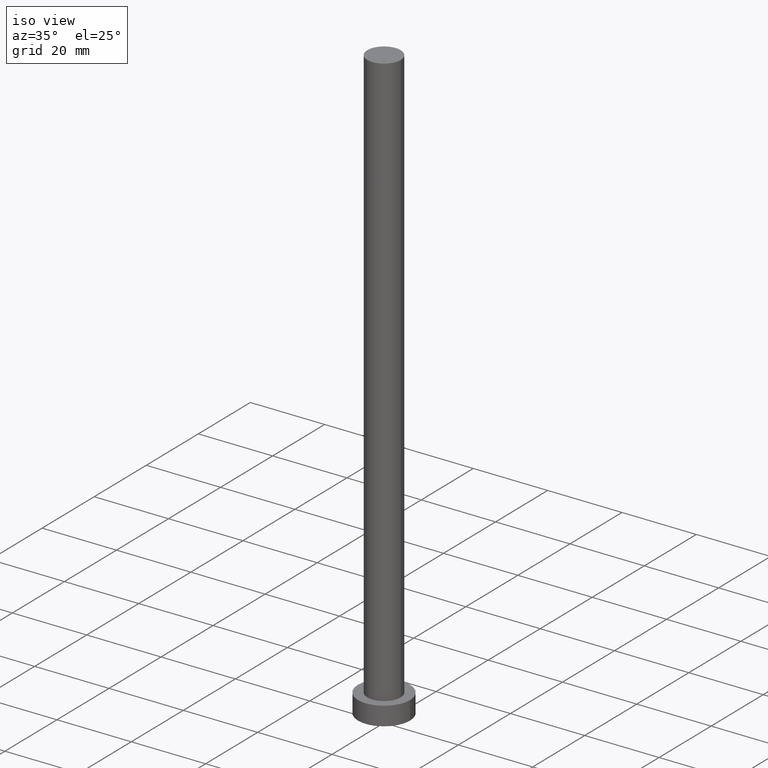
[diagram: clean part render]
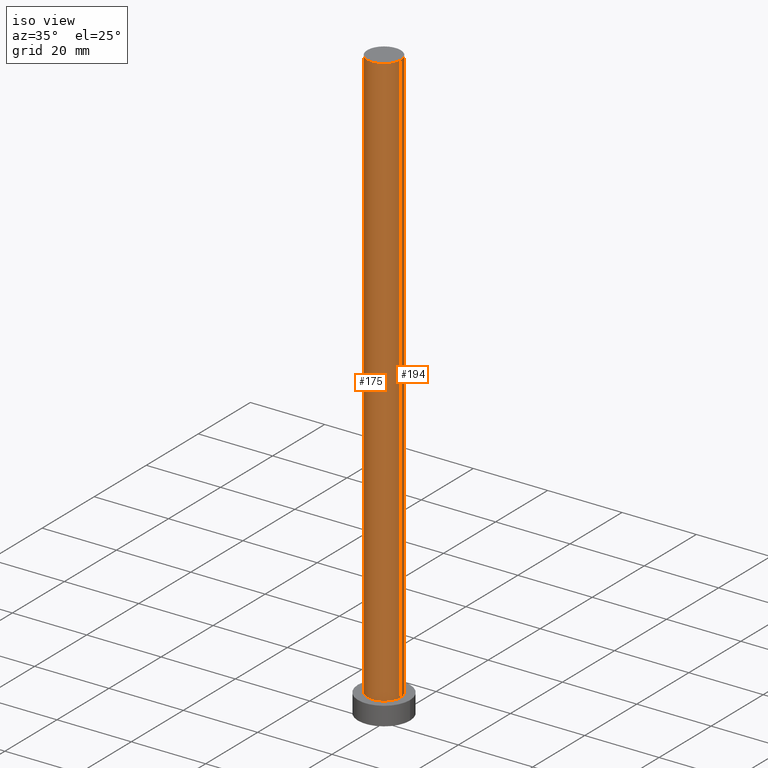
[diagram: same view with one multi-face feature highlighted, each face labeled with its STEP entity id]
A machine part, iso view. The highlighted faces form ONE feature: a constant-radius fillet chain: 2 tangent blend faces with common blend radius 4.5 mm. The faces share edges in the B-rep.
Their STEP definitions:
[1] entity #175 (Cylinder):
#2 = VERTEX_POINT ( 'NONE', #113 ) ;
#5 = ORIENTED_EDGE ( 'NONE', *, *, #195, .T. ) ;
#9 = FACE_OUTER_BOUND ( 'NONE', #236, .T. ) ;
#11 = CYLINDRICAL_SURFACE ( 'NONE', #232, 4.500000000000000888 ) ;
#26 = VERTEX_POINT ( 'NONE', #159 ) ;
#27 = CARTESIAN_POINT ( 'NONE',  ( 0.000000000000000000, 0.000000000000000000, 160.0000000000000000 ) ) ;
#32 = CARTESIAN_POINT ( 'NONE',  ( -4.500000000000000888, 0.000000000000000000, 160.0000000000000000 ) ) ;
#33 = CARTESIAN_POINT ( 'NONE',  ( 0.000000000000000000, 0.000000000000000000, 160.0000000000000000 ) ) ;
#43 = DIRECTION ( 'NONE',  ( -0.000000000000000000, -0.000000000000000000, -1.000000000000000000 ) ) ;
#45 = AXIS2_PLACEMENT_3D ( 'NONE', #33, #141, #127 ) ;
#56 = ORIENTED_EDGE ( 'NONE', *, *, #223, .T. ) ;
#61 = EDGE_CURVE ( 'NONE', #2, #118, #173, .T. ) ;
#66 = ORIENTED_EDGE ( 'NONE', *, *, #205, .F. ) ;
#73 = DIRECTION ( 'NONE',  ( -0.000000000000000000, -0.000000000000000000, -1.000000000000000000 ) ) ;
#81 = CIRCLE ( 'NONE', #207, 4.500000000000000888 ) ;
#86 = DIRECTION ( 'NONE',  ( 1.000000000000000000, 0.000000000000000000, 0.000000000000000000 ) ) ;
#95 = CARTESIAN_POINT ( 'NONE',  ( 4.500000000000000888, 5.510910596163089556E-16, 160.0000000000000000 ) ) ;
#106 = DIRECTION ( 'NONE',  ( 0.000000000000000000, 0.000000000000000000, 1.000000000000000000 ) ) ;
#113 = CARTESIAN_POINT ( 'NONE',  ( -4.500000000000000888, 0.000000000000000000, 160.0000000000000000 ) ) ;
#118 = VERTEX_POINT ( 'NONE', #244 ) ;
#122 = VECTOR ( 'NONE', #43, 1000.000000000000000 ) ;
#123 = CARTESIAN_POINT ( 'NONE',  ( 0.000000000000000000, 0.000000000000000000, 5.000000000000000000 ) ) ;
#127 = DIRECTION ( 'NONE',  ( 1.000000000000000000, 0.000000000000000000, 0.000000000000000000 ) ) ;
#128 = LINE ( 'NONE', #95, #122 ) ;
#141 = DIRECTION ( 'NONE',  ( 0.000000000000000000, 0.000000000000000000, 1.000000000000000000 ) ) ;
#155 = VERTEX_POINT ( 'NONE', #201 ) ;
#159 = CARTESIAN_POINT ( 'NONE',  ( -4.500000000000000888, 0.000000000000000000, 5.000000000000000000 ) ) ;
#169 = VECTOR ( 'NONE', #73, 1000.000000000000000 ) ;
#173 = CIRCLE ( 'NONE', #45, 4.500000000000000888 ) ;
#174 = ORIENTED_EDGE ( 'NONE', *, *, #61, .F. ) ;
#175 = ADVANCED_FACE ( 'NONE', ( #9 ), #11, .T. ) ;
#195 = EDGE_CURVE ( 'NONE', #2, #26, #248, .T. ) ;
#201 = CARTESIAN_POINT ( 'NONE',  ( 4.500000000000000888, 5.510910596163089556E-16, 5.000000000000000000 ) ) ;
#205 = EDGE_CURVE ( 'NONE', #118, #155, #128, .T. ) ;
#207 = AXIS2_PLACEMENT_3D ( 'NONE', #123, #106, #86 ) ;
#223 = EDGE_CURVE ( 'NONE', #26, #155, #81, .T. ) ;
#226 = DIRECTION ( 'NONE',  ( -1.000000000000000000, 0.000000000000000000, 0.000000000000000000 ) ) ;
#232 = AXIS2_PLACEMENT_3D ( 'NONE', #27, #247, #226 ) ;
#236 = EDGE_LOOP ( 'NONE', ( #66, #174, #5, #56 ) ) ;
#244 = CARTESIAN_POINT ( 'NONE',  ( 4.500000000000000888, 5.510910596163089556E-16, 160.0000000000000000 ) ) ;
#247 = DIRECTION ( 'NONE',  ( -0.000000000000000000, -0.000000000000000000, -1.000000000000000000 ) ) ;
#248 = LINE ( 'NONE', #32, #169 ) ;
[2] entity #194 (Cylinder):
#2 = VERTEX_POINT ( 'NONE', #113 ) ;
#10 = AXIS2_PLACEMENT_3D ( 'NONE', #111, #164, #230 ) ;
#13 = ORIENTED_EDGE ( 'NONE', *, *, #195, .F. ) ;
#15 = ORIENTED_EDGE ( 'NONE', *, *, #72, .T. ) ;
#26 = VERTEX_POINT ( 'NONE', #159 ) ;
#32 = CARTESIAN_POINT ( 'NONE',  ( -4.500000000000000888, 0.000000000000000000, 160.0000000000000000 ) ) ;
#43 = DIRECTION ( 'NONE',  ( -0.000000000000000000, -0.000000000000000000, -1.000000000000000000 ) ) ;
#52 = DIRECTION ( 'NONE',  ( -1.000000000000000000, 0.000000000000000000, 0.000000000000000000 ) ) ;
#63 = AXIS2_PLACEMENT_3D ( 'NONE', #91, #71, #52 ) ;
#71 = DIRECTION ( 'NONE',  ( -0.000000000000000000, -0.000000000000000000, -1.000000000000000000 ) ) ;
#72 = EDGE_CURVE ( 'NONE', #155, #26, #214, .T. ) ;
#73 = DIRECTION ( 'NONE',  ( -0.000000000000000000, -0.000000000000000000, -1.000000000000000000 ) ) ;
#88 = EDGE_LOOP ( 'NONE', ( #151, #234, #15, #13 ) ) ;
#91 = CARTESIAN_POINT ( 'NONE',  ( 0.000000000000000000, 0.000000000000000000, 160.0000000000000000 ) ) ;
#95 = CARTESIAN_POINT ( 'NONE',  ( 4.500000000000000888, 5.510910596163089556E-16, 160.0000000000000000 ) ) ;
#102 = EDGE_CURVE ( 'NONE', #118, #2, #239, .T. ) ;
#111 = CARTESIAN_POINT ( 'NONE',  ( 0.000000000000000000, 0.000000000000000000, 5.000000000000000000 ) ) ;
#113 = CARTESIAN_POINT ( 'NONE',  ( -4.500000000000000888, 0.000000000000000000, 160.0000000000000000 ) ) ;
#118 = VERTEX_POINT ( 'NONE', #244 ) ;
#122 = VECTOR ( 'NONE', #43, 1000.000000000000000 ) ;
#128 = LINE ( 'NONE', #95, #122 ) ;
#142 = FACE_OUTER_BOUND ( 'NONE', #88, .T. ) ;
#151 = ORIENTED_EDGE ( 'NONE', *, *, #102, .F. ) ;
#155 = VERTEX_POINT ( 'NONE', #201 ) ;
#159 = CARTESIAN_POINT ( 'NONE',  ( -4.500000000000000888, 0.000000000000000000, 5.000000000000000000 ) ) ;
#160 = CYLINDRICAL_SURFACE ( 'NONE', #63, 4.500000000000000888 ) ;
#164 = DIRECTION ( 'NONE',  ( 0.000000000000000000, 0.000000000000000000, 1.000000000000000000 ) ) ;
#167 = AXIS2_PLACEMENT_3D ( 'NONE', #200, #204, #181 ) ;
#169 = VECTOR ( 'NONE', #73, 1000.000000000000000 ) ;
#181 = DIRECTION ( 'NONE',  ( 1.000000000000000000, 0.000000000000000000, 0.000000000000000000 ) ) ;
#194 = ADVANCED_FACE ( 'NONE', ( #142 ), #160, .T. ) ;
#195 = EDGE_CURVE ( 'NONE', #2, #26, #248, .T. ) ;
#200 = CARTESIAN_POINT ( 'NONE',  ( 0.000000000000000000, 0.000000000000000000, 160.0000000000000000 ) ) ;
#201 = CARTESIAN_POINT ( 'NONE',  ( 4.500000000000000888, 5.510910596163089556E-16, 5.000000000000000000 ) ) ;
#204 = DIRECTION ( 'NONE',  ( 0.000000000000000000, 0.000000000000000000, 1.000000000000000000 ) ) ;
#205 = EDGE_CURVE ( 'NONE', #118, #155, #128, .T. ) ;
#214 = CIRCLE ( 'NONE', #10, 4.500000000000000888 ) ;
#230 = DIRECTION ( 'NONE',  ( 1.000000000000000000, 0.000000000000000000, 0.000000000000000000 ) ) ;
#234 = ORIENTED_EDGE ( 'NONE', *, *, #205, .T. ) ;
#239 = CIRCLE ( 'NONE', #167, 4.500000000000000888 ) ;
#244 = CARTESIAN_POINT ( 'NONE',  ( 4.500000000000000888, 5.510910596163089556E-16, 160.0000000000000000 ) ) ;
#248 = LINE ( 'NONE', #32, #169 ) ;